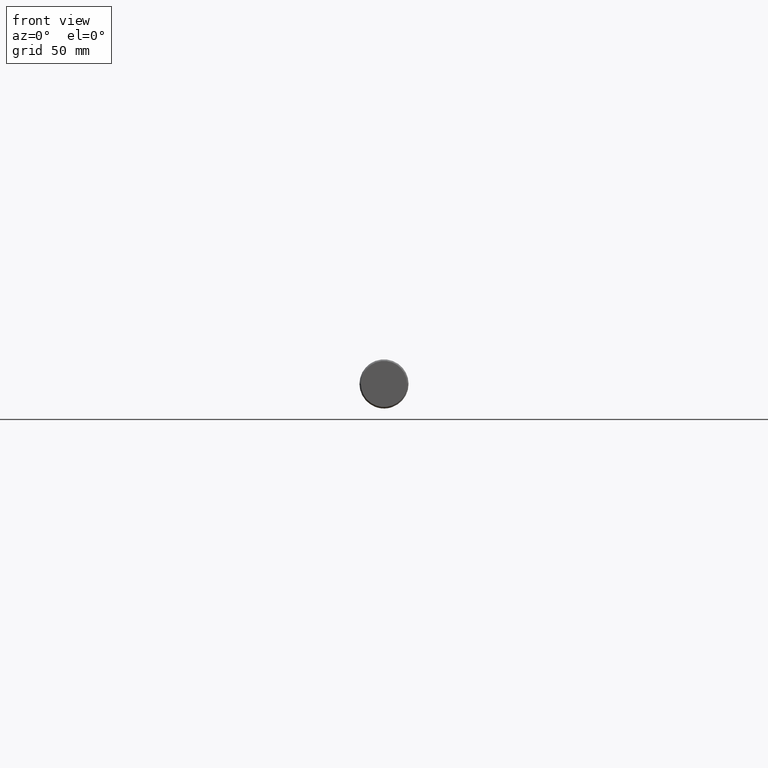
[diagram: clean part render]
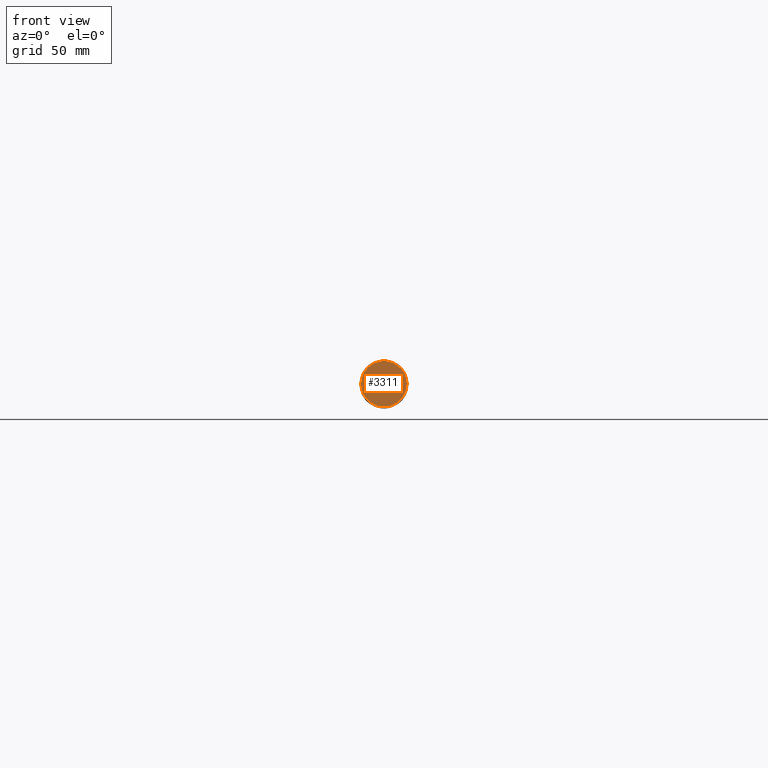
[diagram: same view with one face highlighted and labeled with its STEP entity id]
A machine part, front view. The second image highlights one B-rep face of the part: STEP entity #3311.
In plain terms, the highlighted planar face has unit normal (-0, 1, 0).
Its self-contained STEP definition (entity closure, byte-faithful):
#121 = DIRECTION ( 'NONE',  ( -1.000000000000000000, 0.0000000000000000000, 0.0000000000000000000 ) ) ;
#463 = ORIENTED_EDGE ( 'NONE', *, *, #1646, .F. ) ;
#682 = VERTEX_POINT ( 'NONE', #7104 ) ;
#757 = FACE_OUTER_BOUND ( 'NONE', #5511, .T. ) ;
#847 = DIRECTION ( 'NONE',  ( -3.061616997868382600E-016, 1.000000000000000000, 0.0000000000000000000 ) ) ;
#953 = PLANE ( 'NONE',  #12779 ) ;
#1646 = EDGE_CURVE ( 'NONE', #682, #8077, #14307, .T. ) ;
#2854 = EDGE_CURVE ( 'NONE', #8077, #682, #7829, .T. ) ;
#3311 = ADVANCED_FACE ( 'NONE', ( #757 ), #953, .F. ) ;
#5077 = CARTESIAN_POINT ( 'NONE',  ( 4.898587196589412900E-014, -250.0000000000000000, 0.0000000000000000000 ) ) ;
#5511 = EDGE_LOOP ( 'NONE', ( #463, #8043 ) ) ;
#6405 = CARTESIAN_POINT ( 'NONE',  ( 15.85000000000003700, -250.0000000000000000, 2.002297516605921500E-015 ) ) ;
#7104 = CARTESIAN_POINT ( 'NONE',  ( -15.84999999999994100, -250.0000000000000000, 0.0000000000000000000 ) ) ;
#7597 = CARTESIAN_POINT ( 'NONE',  ( 4.898587196589412900E-014, -250.0000000000000000, 0.0000000000000000000 ) ) ;
#7829 = CIRCLE ( 'NONE', #14158, 15.84999999999998900 ) ;
#8043 = ORIENTED_EDGE ( 'NONE', *, *, #2854, .F. ) ;
#8077 = VERTEX_POINT ( 'NONE', #6405 ) ;
#8325 = CARTESIAN_POINT ( 'NONE',  ( 4.898587196589412900E-014, -250.0000000000000000, 0.0000000000000000000 ) ) ;
#8818 = DIRECTION ( 'NONE',  ( -3.061616997868382600E-016, 1.000000000000000000, -0.0000000000000000000 ) ) ;
#9581 = DIRECTION ( 'NONE',  ( -1.000000000000000000, -3.061616997868382600E-016, 0.0000000000000000000 ) ) ;
#10807 = AXIS2_PLACEMENT_3D ( 'NONE', #7597, #8818, #15151 ) ;
#12779 = AXIS2_PLACEMENT_3D ( 'NONE', #8325, #847, #9581 ) ;
#14158 = AXIS2_PLACEMENT_3D ( 'NONE', #5077, #15083, #121 ) ;
#14307 = CIRCLE ( 'NONE', #10807, 15.84999999999998900 ) ;
#15083 = DIRECTION ( 'NONE',  ( -3.061616997868382600E-016, 1.000000000000000000, -0.0000000000000000000 ) ) ;
#15151 = DIRECTION ( 'NONE',  ( -1.000000000000000000, 0.0000000000000000000, 0.0000000000000000000 ) ) ;